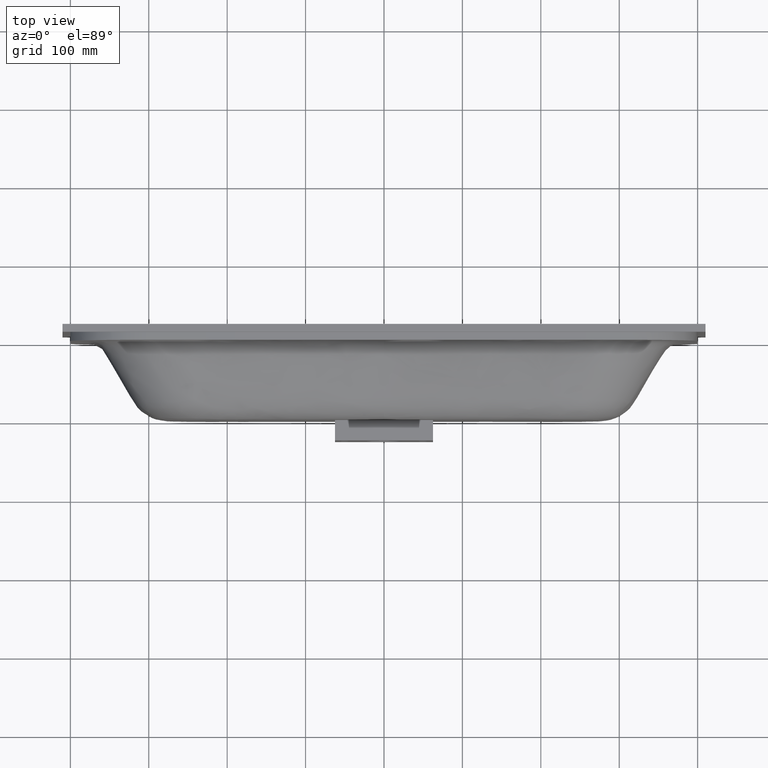
[diagram: clean part render]
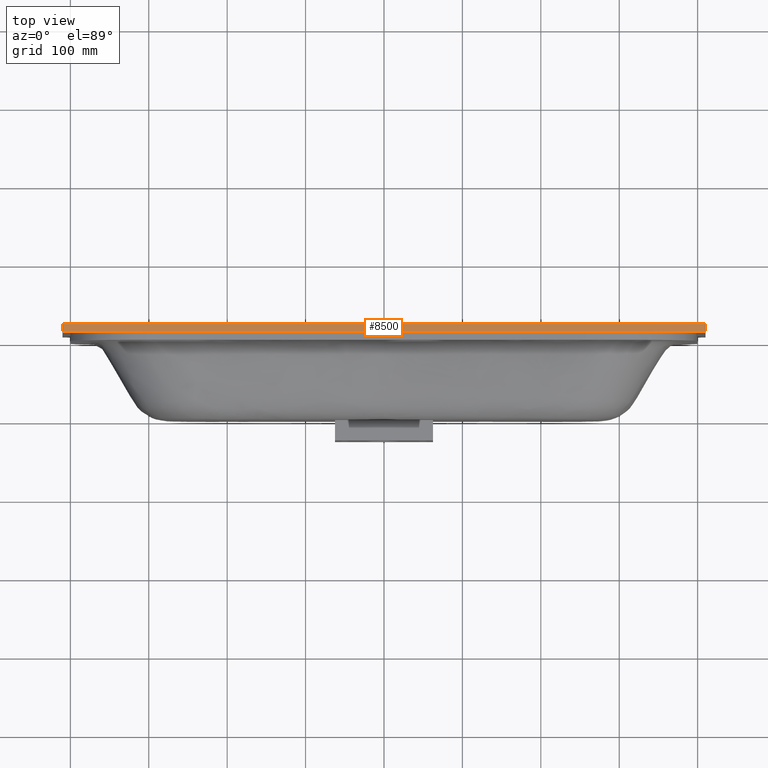
[diagram: same view with one face highlighted and labeled with its STEP entity id]
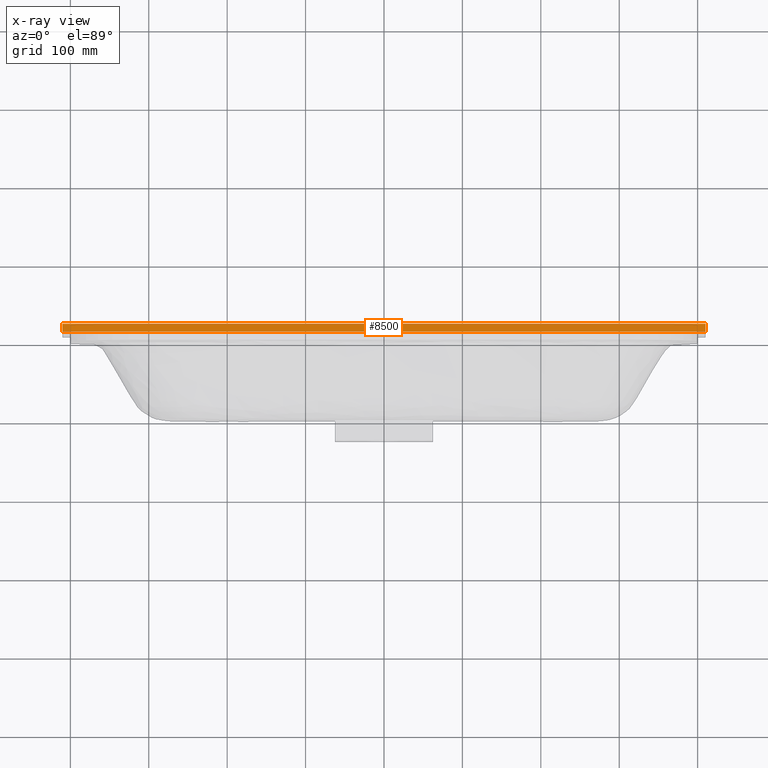
[diagram: x-ray of the same camera — body ghosted, the highlighted face saturated]
A machine part, top view. The second image highlights one B-rep face of the part: STEP entity #8500.
The next image is the same camera in x-ray: the body ghosted, the highlighted face saturated — about 0% of this face is hidden behind the body in this view.
In plain terms, the highlighted planar face has unit normal (0, 0, 1).
Its self-contained STEP definition (entity closure, byte-faithful):
#78 = DIRECTION ( 'NONE',  ( -2.775557561562891400E-015, 1.000000000000000000, -5.551115123125683100E-016 ) ) ;
#85 = CARTESIAN_POINT ( 'NONE',  ( 410.0000000000010800, 110.0000000000024000, 209.9999999999986600 ) ) ;
#113 = EDGE_CURVE ( 'NONE', #587, #8951, #8902, .T. ) ;
#587 = VERTEX_POINT ( 'NONE', #8350 ) ;
#1019 = VERTEX_POINT ( 'NONE', #7747 ) ;
#1051 = CARTESIAN_POINT ( 'NONE',  ( 410.0000000000010800, 110.0000000000024000, 209.9999999999986600 ) ) ;
#1255 = EDGE_LOOP ( 'NONE', ( #6919, #1866, #1410, #6921 ) ) ;
#1410 = ORIENTED_EDGE ( 'NONE', *, *, #3478, .T. ) ;
#1499 = EDGE_CURVE ( 'NONE', #5514, #8951, #8544, .T. ) ;
#1866 = ORIENTED_EDGE ( 'NONE', *, *, #9704, .F. ) ;
#3413 = DIRECTION ( 'NONE',  ( 1.895115065277039400E-030, -1.000000000000000000, 5.551115123125780700E-016 ) ) ;
#3442 = DIRECTION ( 'NONE',  ( 3.515480589560021500E-015, 5.551115123125780700E-016, 1.000000000000000000 ) ) ;
#3470 = PLANE ( 'NONE',  #3770 ) ;
#3478 = EDGE_CURVE ( 'NONE', #1019, #5514, #6790, .T. ) ;
#3770 = AXIS2_PLACEMENT_3D ( 'NONE', #7546, #3442, #3413 ) ;
#4098 = DIRECTION ( 'NONE',  ( 1.000000000000000000, 2.775557561562888600E-015, -3.515480589560023100E-015 ) ) ;
#4283 = CARTESIAN_POINT ( 'NONE',  ( 410.0000000000010800, 120.0000000000024000, 209.9999999999986600 ) ) ;
#5018 = CARTESIAN_POINT ( 'NONE',  ( 410.0000000000010800, 120.0000000000024000, 209.9999999999986600 ) ) ;
#5514 = VERTEX_POINT ( 'NONE', #85 ) ;
#6672 = FACE_OUTER_BOUND ( 'NONE', #1255, .T. ) ;
#6728 = VECTOR ( 'NONE', #4098, 1000.000000000000000 ) ;
#6790 = LINE ( 'NONE', #8417, #6728 ) ;
#6919 = ORIENTED_EDGE ( 'NONE', *, *, #113, .F. ) ;
#6921 = ORIENTED_EDGE ( 'NONE', *, *, #1499, .T. ) ;
#6999 = LINE ( 'NONE', #8683, #8993 ) ;
#7546 = CARTESIAN_POINT ( 'NONE',  ( 410.0000000000010800, 110.0000000000024000, 209.9999999999986600 ) ) ;
#7747 = CARTESIAN_POINT ( 'NONE',  ( -409.9999999999996600, 110.0000000000001300, 210.0000000000015100 ) ) ;
#7882 = DIRECTION ( 'NONE',  ( 1.000000000000000000, 2.775557561562888600E-015, -3.515480589560023100E-015 ) ) ;
#8350 = CARTESIAN_POINT ( 'NONE',  ( -409.9999999999996600, 120.0000000000001100, 210.0000000000015100 ) ) ;
#8354 = VECTOR ( 'NONE', #78, 1000.000000000000000 ) ;
#8417 = CARTESIAN_POINT ( 'NONE',  ( 410.0000000000010800, 110.0000000000024000, 209.9999999999986600 ) ) ;
#8500 = ADVANCED_FACE ( 'NONE', ( #6672 ), #3470, .T. ) ;
#8544 = LINE ( 'NONE', #1051, #8354 ) ;
#8582 = DIRECTION ( 'NONE',  ( -2.775557561562891400E-015, 1.000000000000000000, -5.551115123125683100E-016 ) ) ;
#8683 = CARTESIAN_POINT ( 'NONE',  ( -409.9999999999996600, 110.0000000000001300, 210.0000000000015100 ) ) ;
#8864 = VECTOR ( 'NONE', #7882, 1000.000000000000000 ) ;
#8902 = LINE ( 'NONE', #4283, #8864 ) ;
#8951 = VERTEX_POINT ( 'NONE', #5018 ) ;
#8993 = VECTOR ( 'NONE', #8582, 1000.000000000000000 ) ;
#9704 = EDGE_CURVE ( 'NONE', #1019, #587, #6999, .T. ) ;